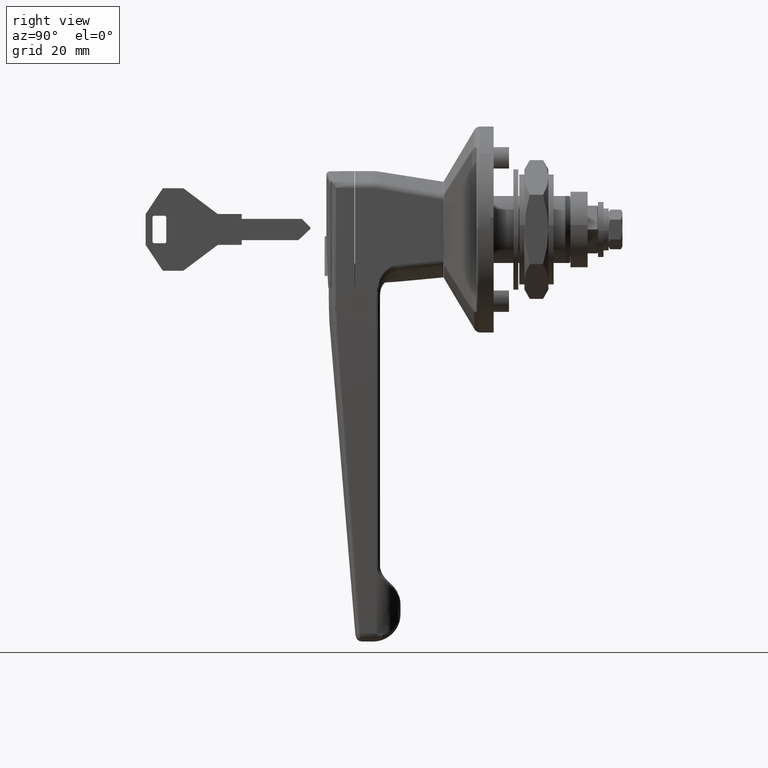
[diagram: clean part render]
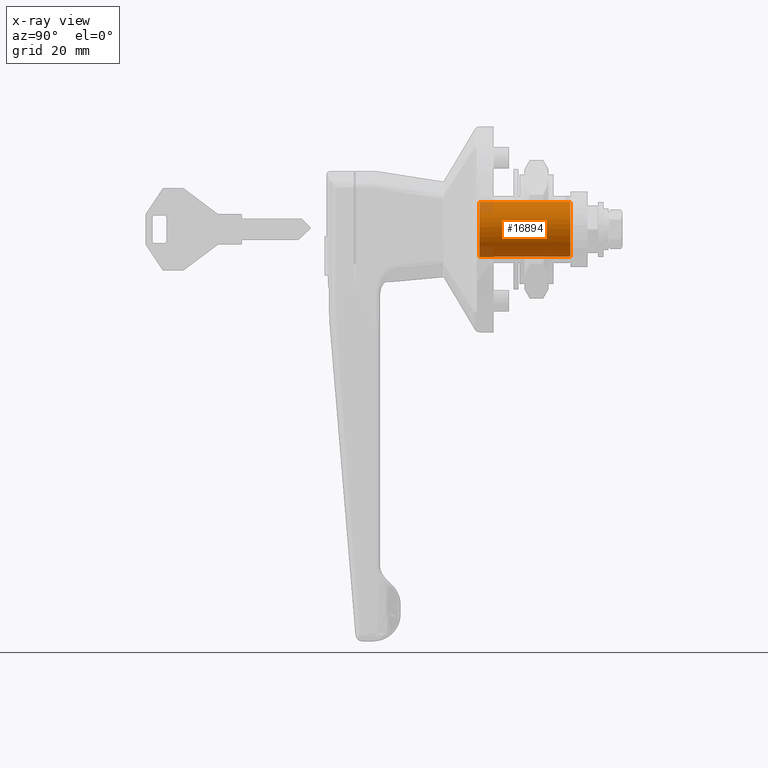
[diagram: x-ray — body ghosted, one internal face saturated and labeled with its STEP entity id]
A machine part, right view, then the same camera in x-ray: the body is ghosted and one INTERNAL B-rep face — a face not visible from any outside direction — is saturated and labeled: STEP entity #16894.
In plain terms, the highlighted face is a freeform B-spline surface patch.
Its self-contained STEP definition (entity closure, byte-faithful):
#16771=CARTESIAN_POINT('',(-4.761250000001136,6.285012620900386,4.949607697093057));
#16772=CARTESIAN_POINT('',(-4.761250000001135,6.143356975104874,5.129482058079175));
#16773=CARTESIAN_POINT('',(-4.761250000001135,5.991645766312015,5.300960385725898));
#16774=CARTESIAN_POINT('',(-4.761250000001135,0.690685380586117,11.292606152037912));
#16775=CARTESIAN_POINT('',(-4.761250000001135,-5.300960385725898,5.991645766312015));
#16776=CARTESIAN_POINT('',(-4.761250000001135,-11.292606152037912,0.690685380586117));
#16777=CARTESIAN_POINT('',(-4.761250000001135,-5.991645766312015,-5.300960385725898));
#16778=CARTESIAN_POINT('',(-4.761250000001135,-0.690685380586117,-11.292606152037912));
#16779=CARTESIAN_POINT('',(-4.761250000001135,5.300960385725898,-5.991645766312015));
#16780=CARTESIAN_POINT('',(23.027781250000025,6.285012620900386,4.949607697093057));
#16781=CARTESIAN_POINT('',(23.027781250000036,6.143356975104874,5.129482058079175));
#16782=CARTESIAN_POINT('',(23.027781250000029,5.991645766312015,5.300960385725898));
#16783=CARTESIAN_POINT('',(23.027781250000025,0.690685380586117,11.292606152037912));
#16784=CARTESIAN_POINT('',(23.027781250000029,-5.300960385725898,5.991645766312015));
#16785=CARTESIAN_POINT('',(23.027781250000025,-11.292606152037912,0.690685380586117));
#16786=CARTESIAN_POINT('',(23.027781250000029,-5.991645766312015,-5.300960385725898));
#16787=CARTESIAN_POINT('',(23.027781250000025,-0.690685380586117,-11.292606152037912));
#16788=CARTESIAN_POINT('',(23.027781250000029,5.300960385725898,-5.991645766312015));
#16796=(BOUNDED_SURFACE()B_SPLINE_SURFACE(2,1,((#16771,#16780),(#16772,#16781),(#16773,#16782),(#16774,#16783),(#16775,#16784),(#16776,#16785),(#16777,#16786),(#16778,#16787),(#16779,#16788)),.UNSPECIFIED.,.F.,.F.,.U.)B_SPLINE_SURFACE_WITH_KNOTS((3,2,2,2,3),(2,2),(0.0,0.530193359837562,13.785027355776601,27.039861351715629,40.294695347654667),(0.0,27.789031250001170),.UNSPECIFIED.)GEOMETRIC_REPRESENTATION_ITEM()RATIONAL_B_SPLINE_SURFACE(((0.977505800795127,0.977505800795127),(0.988284271247462,0.988284271247462),(1.0,1.0),(0.707106781186548,0.707106781186548),(1.0,1.0),(0.707106781186548,0.707106781186548),(1.0,1.0),(0.707106781186548,0.707106781186548),(1.0,1.0)))REPRESENTATION_ITEM('')SURFACE());
#16797=CARTESIAN_POINT('',(-4.100000000000726,6.285018474671052,4.949600263956071));
#16798=VERTEX_POINT('',#16797);
#16799=CARTESIAN_POINT('',(-4.100000000001105,0.0,8.0));
#16800=VERTEX_POINT('',#16799);
#16801=CARTESIAN_POINT('',(-4.100000000000725,6.285018474671051,4.949600263956071));
#16802=CARTESIAN_POINT('',(-4.100000000001105,3.882756747120601,8.0));
#16803=CARTESIAN_POINT('',(-4.100000000001105,0.0,8.0));
#16811=(BOUNDED_CURVE()B_SPLINE_CURVE(2,(#16801,#16802,#16803),.UNSPECIFIED.,.F.,.U.)B_SPLINE_CURVE_WITH_KNOTS((3,3),(0.857127361811725,1.0),.UNSPECIFIED.)CURVE()GEOMETRIC_REPRESENTATION_ITEM()RATIONAL_B_SPLINE_CURVE((0.856547285989431,0.832614292482666,1.0))REPRESENTATION_ITEM(''));
#16812=EDGE_CURVE('',#16798,#16800,#16811,.T.);
#16813=ORIENTED_EDGE('',*,*,#16812,.F.);
#16814=CARTESIAN_POINT('',(22.350000000000001,6.285018404171154,4.949600353477286));
#16815=VERTEX_POINT('',#16814);
#16816=CARTESIAN_POINT('',(-4.100000000000726,6.285018474671052,4.949600263956071));
#16817=CARTESIAN_POINT('',(22.350000000000001,6.285018404171154,4.949600353477286));
#16818=QUASI_UNIFORM_CURVE('',1,(#16816,#16817),.UNSPECIFIED.,.F.,.U.);
#16819=EDGE_CURVE('',#16798,#16815,#16818,.T.);
#16820=ORIENTED_EDGE('',*,*,#16819,.T.);
#16821=CARTESIAN_POINT('',(22.350000000000001,-8.0,0.0));
#16822=VERTEX_POINT('',#16821);
#16823=CARTESIAN_POINT('',(22.350000000000001,6.285018404171154,4.949600353477286));
#16824=CARTESIAN_POINT('',(22.350000000000005,3.882756676725470,8.0));
#16825=CARTESIAN_POINT('',(22.350000000000001,0.0,8.0));
#16826=CARTESIAN_POINT('',(22.350000000000001,-8.0,8.0));
#16827=CARTESIAN_POINT('',(22.350000000000001,-8.0,0.0));
#16835=(BOUNDED_CURVE()B_SPLINE_CURVE(2,(#16823,#16824,#16825,#16826,#16827),.UNSPECIFIED.,.F.,.U.)B_SPLINE_CURVE_WITH_KNOTS((3,2,3),(0.107127363968453,0.250000000000000,0.500000000000000),.UNSPECIFIED.)CURVE()GEOMETRIC_REPRESENTATION_ITEM()RATIONAL_B_SPLINE_CURVE((0.856547285266872,0.832614295009430,1.0,0.707106781186548,1.0))REPRESENTATION_ITEM(''));
#16836=EDGE_CURVE('',#16815,#16822,#16835,.T.);
#16837=ORIENTED_EDGE('',*,*,#16836,.T.);
#16838=CARTESIAN_POINT('',(22.349999999999991,5.300957923185859,-5.991647944981601));
#16839=VERTEX_POINT('',#16838);
#16840=CARTESIAN_POINT('',(22.350000000000001,-8.0,0.0));
#16841=CARTESIAN_POINT('',(22.350000000000001,-8.0,-8.0));
#16842=CARTESIAN_POINT('',(22.350000000000001,0.0,-8.0));
#16843=CARTESIAN_POINT('',(22.349999999999994,3.030926989604489,-8.0));
#16844=CARTESIAN_POINT('',(22.349999999999998,5.300957923185859,-5.991647944981601));
#16852=(BOUNDED_CURVE()B_SPLINE_CURVE(2,(#16840,#16841,#16842,#16843,#16844),.UNSPECIFIED.,.F.,.U.)B_SPLINE_CURVE_WITH_KNOTS((3,2,3),(0.500000000000000,0.750000000000000,0.865779825987258),.UNSPECIFIED.)CURVE()GEOMETRIC_REPRESENTATION_ITEM()RATIONAL_B_SPLINE_CURVE((1.0,0.707106781186548,1.0,0.864355496371722,0.854350168953125))REPRESENTATION_ITEM(''));
#16853=EDGE_CURVE('',#16822,#16839,#16852,.T.);
#16854=ORIENTED_EDGE('',*,*,#16853,.T.);
#16855=CARTESIAN_POINT('',(-4.100000000001225,5.300956082785472,-5.991649573226615));
#16856=VERTEX_POINT('',#16855);
#16857=CARTESIAN_POINT('',(-4.100000000001225,5.300956082785472,-5.991649573226615));
#16858=CARTESIAN_POINT('',(22.349999999999991,5.300957923185859,-5.991647944981601));
#16859=QUASI_UNIFORM_CURVE('',1,(#16857,#16858),.UNSPECIFIED.,.F.,.U.);
#16860=EDGE_CURVE('',#16856,#16839,#16859,.T.);
#16861=ORIENTED_EDGE('',*,*,#16860,.F.);
#16862=CARTESIAN_POINT('',(-4.100000000001105,0.0,-8.0));
#16863=VERTEX_POINT('',#16862);
#16864=CARTESIAN_POINT('',(-4.100000000001105,0.0,-8.0));
#16865=CARTESIAN_POINT('',(-4.100000000001105,3.030925584602844,-8.0));
#16866=CARTESIAN_POINT('',(-4.100000000001225,5.300956082785473,-5.991649573226616));
#16874=(BOUNDED_CURVE()B_SPLINE_CURVE(2,(#16864,#16865,#16866),.UNSPECIFIED.,.F.,.U.)B_SPLINE_CURVE_WITH_KNOTS((3,3),(0.500000000000000,0.615779779597012),.UNSPECIFIED.)CURVE()GEOMETRIC_REPRESENTATION_ITEM()RATIONAL_B_SPLINE_CURVE((1.0,0.864355550721276,0.854350176970942))REPRESENTATION_ITEM(''));
#16875=EDGE_CURVE('',#16863,#16856,#16874,.T.);
#16876=ORIENTED_EDGE('',*,*,#16875,.F.);
#16877=CARTESIAN_POINT('',(-4.100000000001105,0.0,8.0));
#16878=CARTESIAN_POINT('',(-4.100000000001105,-8.0,8.0));
#16879=CARTESIAN_POINT('',(-4.100000000001105,-8.0,0.0));
#16880=CARTESIAN_POINT('',(-4.100000000001105,-8.0,-8.0));
#16881=CARTESIAN_POINT('',(-4.100000000001105,0.0,-8.0));
#16889=(BOUNDED_CURVE()B_SPLINE_CURVE(2,(#16877,#16878,#16879,#16880,#16881),.UNSPECIFIED.,.F.,.U.)B_SPLINE_CURVE_WITH_KNOTS((3,2,3),(0.0,0.250000000000000,0.500000000000000),.UNSPECIFIED.)CURVE()GEOMETRIC_REPRESENTATION_ITEM()RATIONAL_B_SPLINE_CURVE((1.0,0.707106781186548,1.0,0.707106781186548,1.0))REPRESENTATION_ITEM(''));
#16890=EDGE_CURVE('',#16800,#16863,#16889,.T.);
#16891=ORIENTED_EDGE('',*,*,#16890,.F.);
#16892=EDGE_LOOP('',(#16813,#16820,#16837,#16854,#16861,#16876,#16891));
#16893=FACE_OUTER_BOUND('',#16892,.T.);
#16894=ADVANCED_FACE('',(#16893),#16796,.F.);